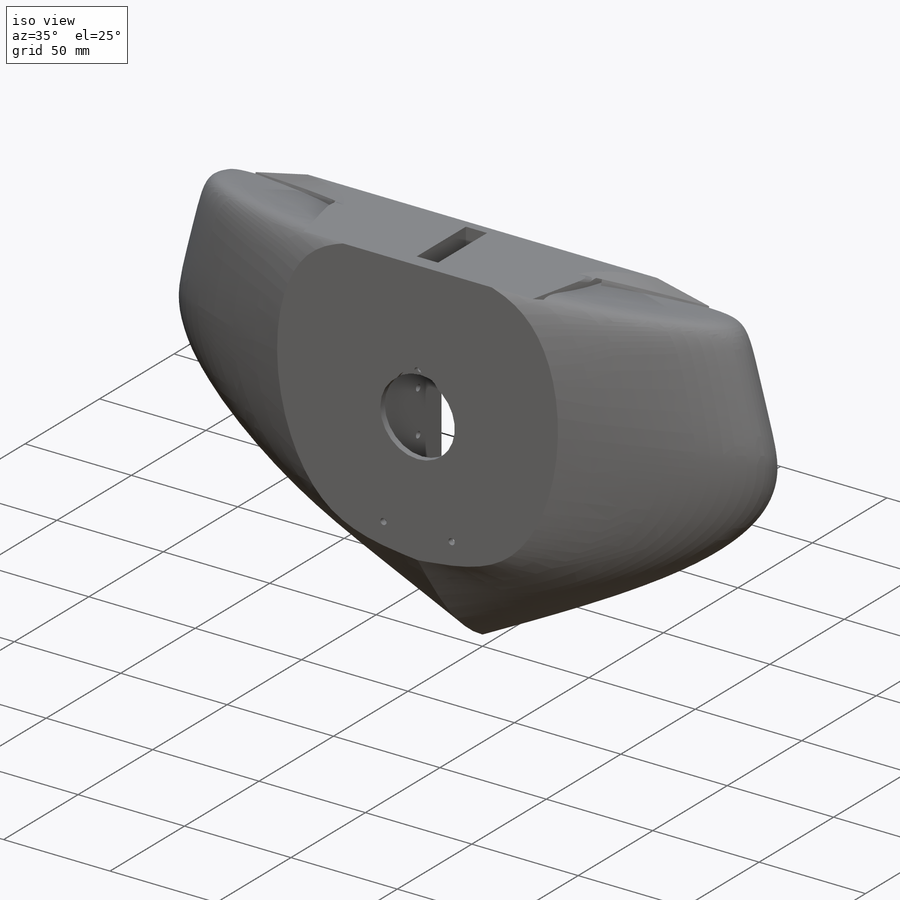
[diagram: iso view]
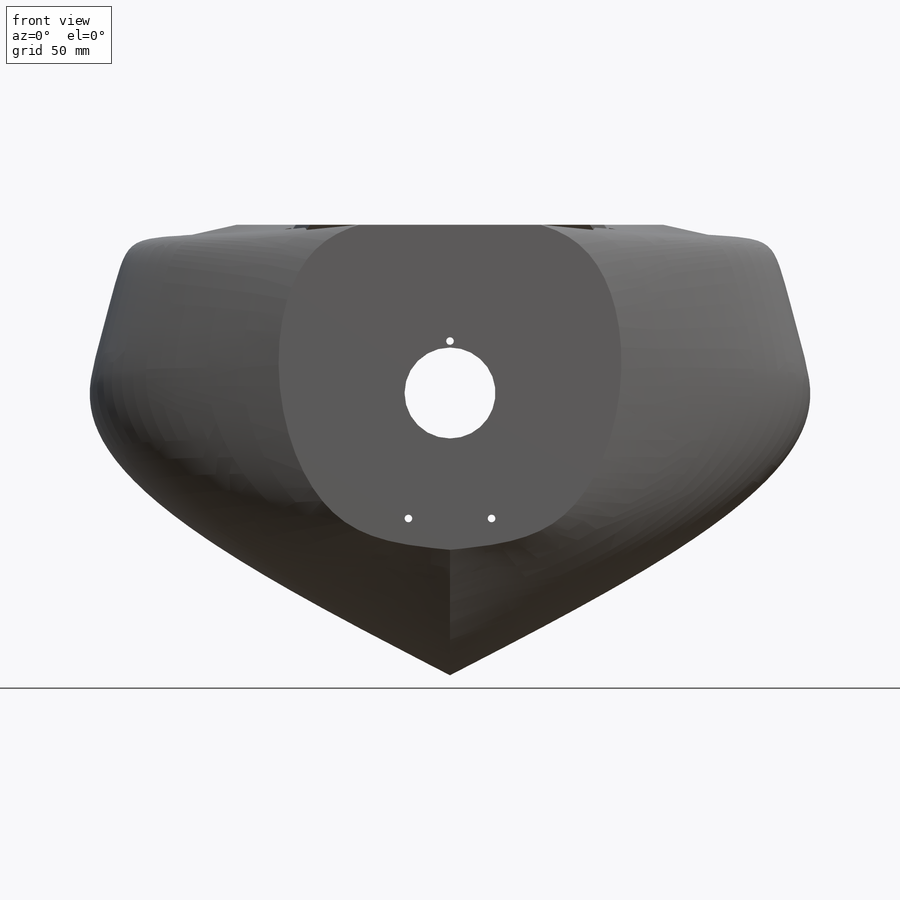
[diagram: front view]
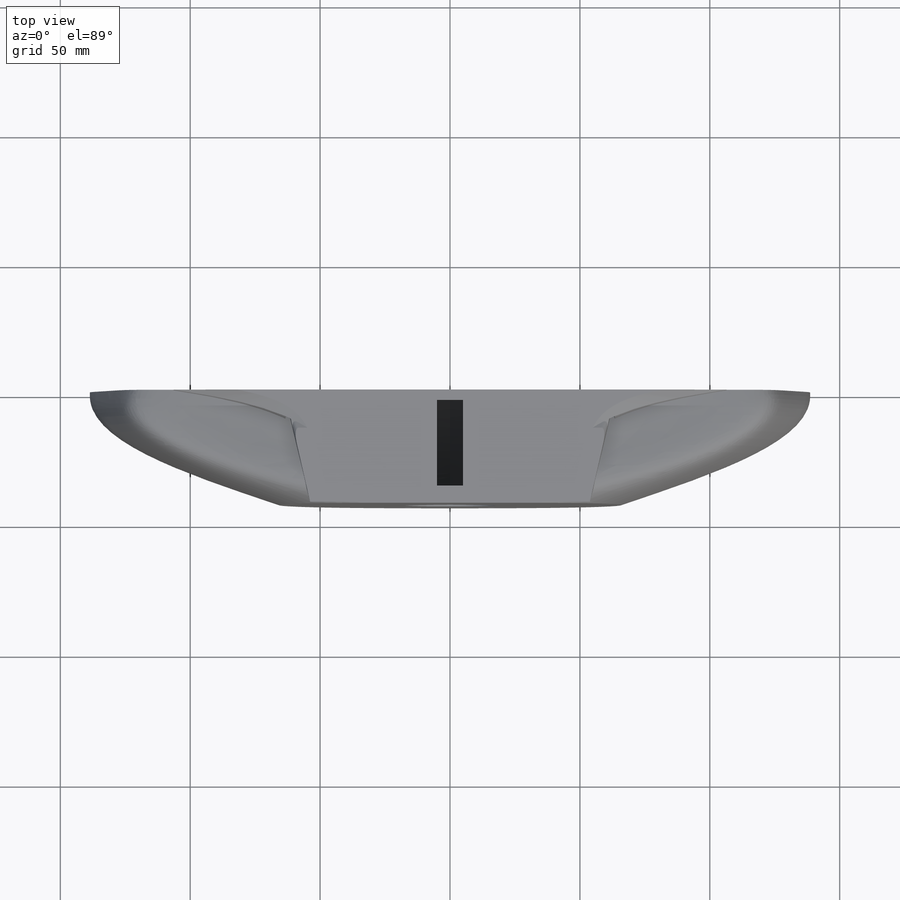
[diagram: top view]
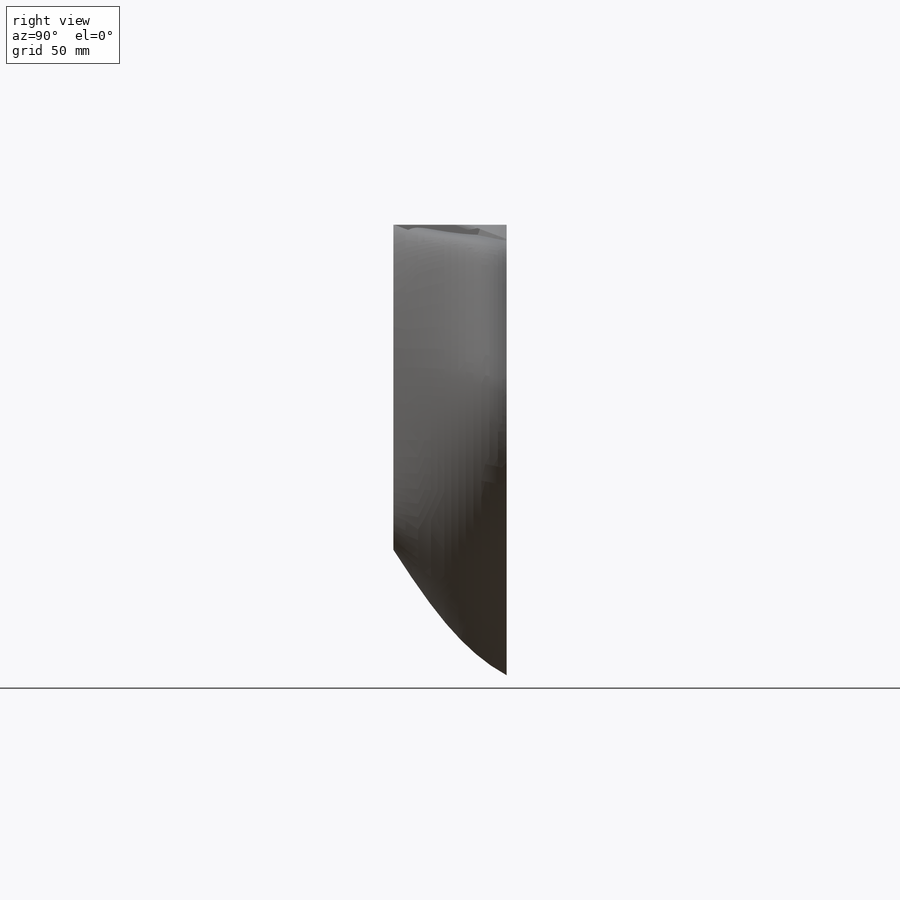
[diagram: right view]
SOLIDWORKS PART (.sldprt)
format: sldprt  version: not decoded by parser v0  size: 886,272 bytes
history: native  units: mm
features: sketch x8, cut_extrude x6, boolean_combine x2, extrude x2, material x1, plane x1, shell x1, fillet x1, mirror x1 (+14 scaffold rows collapsed)
feature tree (37):
  scaffold x14  (default folders/planes/origin — collapsed)
  material  "Material <not specified>"
  plane  "Plane1"  Offset=48mm
  shell  "Shell7"  Thickness=3mm
  boolean_combine  "Combine1"
  sketch  "Sketch1"  dims[D1=35.0mm]
  cut_extrude  "Extrude2"  Depth=10mm
  sketch  "Sketch2"  dims[D1=10.0mm D2=33.0mm D3=4.0mm]
  cut_extrude  "Cut-Extrude1"  Depth=30mm
  sketch  "Sketch3"
  cut_extrude  "Extrude3"  Depth=10mm
  sketch  "Sketch4"  dims[D1=5.0mm D2=19.25mm]
  extrude  "Extrude4"  [1 undecoded]
  sketch  "Sketch5"
  extrude  "Extrude6"  Depth=5mm
  sketch  "Sketch6"
  cut_extrude  "Cut-Extrude2"  Depth=10mm
  fillet  "Fillet2"  Radius=11.5mm
  mirror  "Mirror1"
  sketch  "Sketch9"
  cut_extrude  "Extrude9"  Depth=71mm
  sketch  "Sketch10"  dims[D3=2.9mm D1=48.3mm D2=32.0mm D4=20.0mm]
  cut_extrude  "Extrude10"  Depth=5mm
  boolean_combine  "Split2"
decode coverage: 13 of 21 modeling features carry decoded parameters
note: 1 parameter value undecoded
note: suppression state not decoded; provenance and decode notes live in map.json
